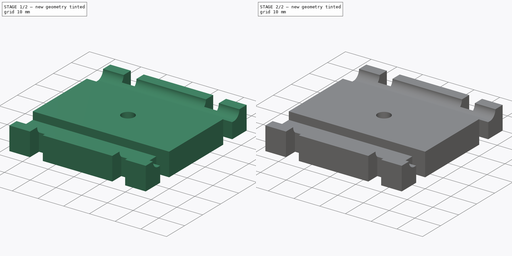
[diagram: build sequence overview — one tinted view per stage of 2, left to right]
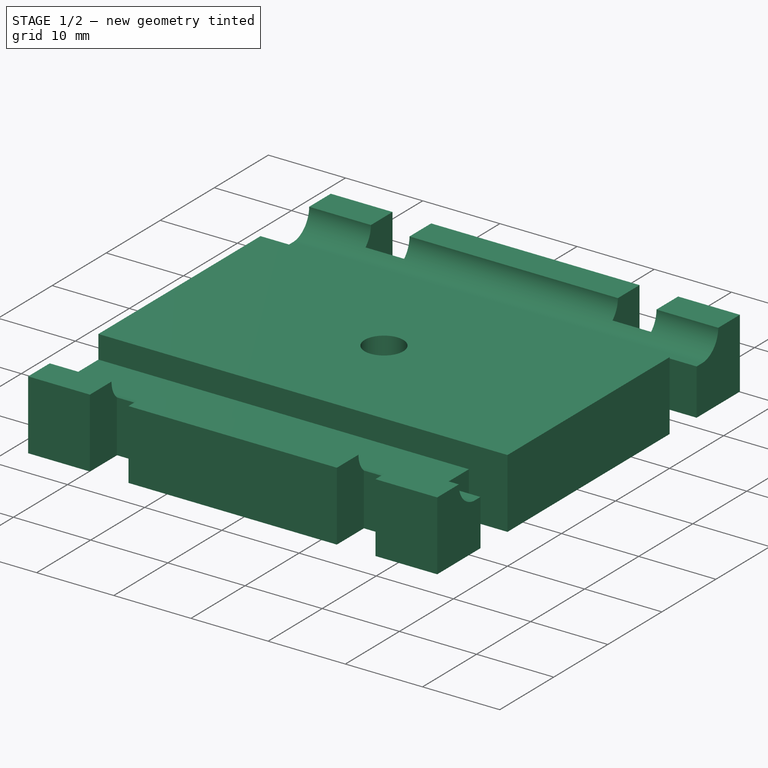
[diagram: stage 1 of 2 — iso view after this stage's code; geometry added in this stage tinted green]
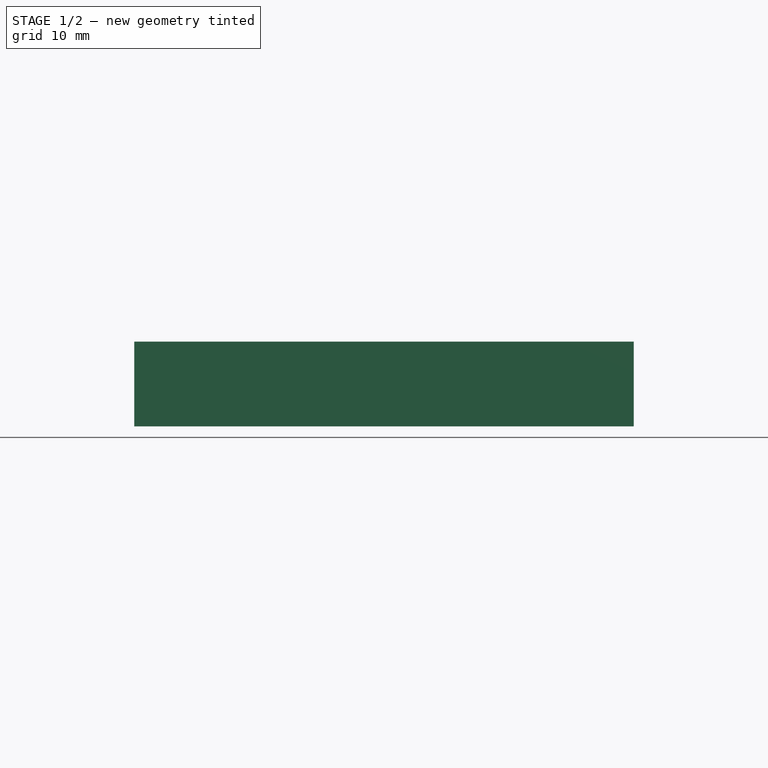
[diagram: stage 1 of 2 — front view after this stage's code; geometry added in this stage tinted green]
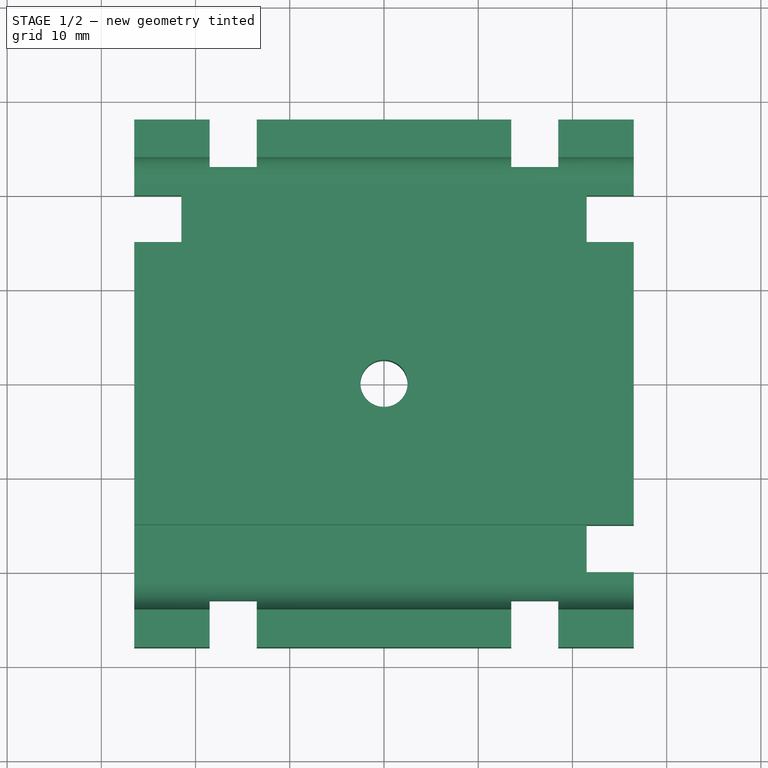
[diagram: stage 1 of 2 — top view after this stage's code; geometry added in this stage tinted green]
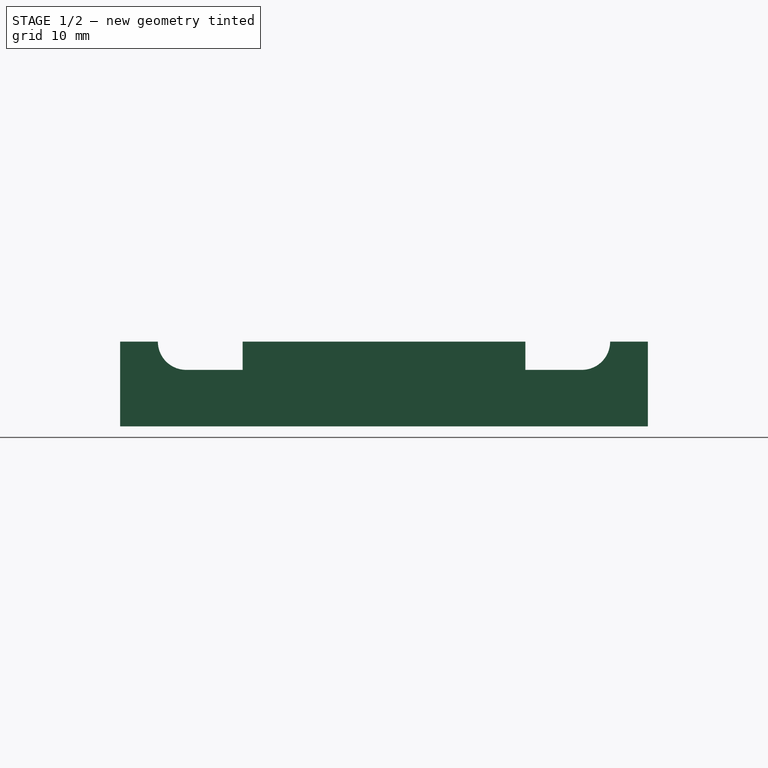
[diagram: stage 1 of 2 — right view after this stage's code; geometry added in this stage tinted green]
FCSTD DOCUMENT  (FreeCAD 0.20R29177 (Git))
Label: ClosetMaid
License: All rights reserved
LicenseURL: http://en.wikipedia.org/wiki/All_rights_reserved
objects: Sketcher::SketchObject×3, PartDesign::Pocket×2, Spreadsheet::Sheet×1, PartDesign::Pad×1, PartDesign::Body×1
note: 10 computed .brp shape members not serialized (recipe doc carries the construction recipe); baked Part::Feature solids carry a one-line shape summary decoded from their .brp

FEATURE [Sketcher::SketchObject] Sketch
  FullyConstrained = true
  MapMode = 5
  Support = -> [XY_Plane]
  expr: Constraints[10] = Spreadsheet.width / 2
  expr: Constraints[11] = Spreadsheet.height / 2
  expr: Constraints[13] = Spreadsheet.centerHoleR
  expr: Constraints[19] = Spreadsheet.holderToSideW
  expr: Constraints[23] = Spreadsheet.sideHolderW
  expr: Constraints[24] = Spreadsheet.sideHoleDepth
  expr: Constraints[31] = Spreadsheet.holderToSideW
  expr: Constraints[34] = Spreadsheet.sideHolderW
  expr: Constraints[35] = Spreadsheet.sideHoleDepth
  expr: Constraints[77] = Spreadsheet.width / 2
  expr: Constraints[8] = Spreadsheet.width
  expr: Constraints[9] = Spreadsheet.height
  sketch-geometry (33):
    g0: LineSegment StartX=-26.5 StartY=28 StartZ=0 EndX=-18.5 EndY=28 EndZ=0
    g1: LineSegment StartX=26.5 StartY=28 StartZ=0 EndX=26.5 EndY=20 EndZ=0
    g2: LineSegment StartX=26.5 StartY=-28 StartZ=0 EndX=18.5 EndY=-28 EndZ=0
    g3: LineSegment StartX=-26.5 StartY=-28 StartZ=0 EndX=-26.5 EndY=15 EndZ=0
    g4: Circle CenterX=0 CenterY=0 CenterZ=0 NormalX=0 NormalY=0 NormalZ=1 AngleXU=0 Radius=2.5
    g5: LineSegment StartX=13.5 StartY=28 StartZ=0 EndX=13.5 EndY=23 EndZ=0
    g6: LineSegment StartX=13.5 StartY=23 StartZ=0 EndX=18.5 EndY=23 EndZ=0
    g7: LineSegment StartX=18.5 StartY=23 StartZ=0 EndX=18.5 EndY=28 EndZ=0
    g8: LineSegment StartX=18.5 StartY=28 StartZ=0 EndX=26.5 EndY=28 EndZ=0
    g9: LineSegment StartX=-18.5 StartY=28 StartZ=0 EndX=-18.5 EndY=23 EndZ=0
    g10: LineSegment StartX=-18.5 StartY=23 StartZ=0 EndX=-13.5 EndY=23 EndZ=0
    g11: LineSegment StartX=-13.5 StartY=23 StartZ=0 EndX=-13.5 EndY=28 EndZ=0
    g12: LineSegment StartX=-13.5 StartY=28 StartZ=0 EndX=13.5 EndY=28 EndZ=0
    g13: LineSegment StartX=-18.5 StartY=-28 StartZ=0 EndX=-18.5 EndY=-23 EndZ=0
    g14: LineSegment StartX=-18.5 StartY=-23 StartZ=0 EndX=-13.5 EndY=-23 EndZ=0
    g15: LineSegment StartX=-13.5 StartY=-23 StartZ=0 EndX=-13.5 EndY=-28 EndZ=0
    g16: LineSegment StartX=-18.5 StartY=-28 StartZ=0 EndX=-26.5 EndY=-28 EndZ=0
    g17: LineSegment StartX=13.5 StartY=-28 StartZ=0 EndX=13.5 EndY=-23 EndZ=0
    g18: LineSegment StartX=13.5 StartY=-23 StartZ=0 EndX=18.5 EndY=-23 EndZ=0
    g19: LineSegment StartX=18.5 StartY=-23 StartZ=0 EndX=18.5 EndY=-28 EndZ=0
    g20: LineSegment StartX=13.5 StartY=-28 StartZ=0 EndX=-13.5 EndY=-28 EndZ=0
    g21: LineSegment StartX=26.5 StartY=20 StartZ=0 EndX=21.5 EndY=20 EndZ=0
    g22: LineSegment StartX=21.5 StartY=20 StartZ=0 EndX=21.5 EndY=15 EndZ=0
    g23: LineSegment StartX=21.5 StartY=15 StartZ=0 EndX=26.5 EndY=15 EndZ=0
    g24: LineSegment StartX=26.5 StartY=15 StartZ=0 EndX=26.5 EndY=-15 EndZ=0
    g25: LineSegment StartX=-26.5 StartY=20 StartZ=0 EndX=-21.5 EndY=20 EndZ=0
    g26: LineSegment StartX=-21.5 StartY=20 StartZ=0 EndX=-21.5 EndY=15 EndZ=0
    g27: LineSegment StartX=-21.5 StartY=15 StartZ=0 EndX=-26.5 EndY=15 EndZ=0
    g28: LineSegment StartX=-26.5 StartY=20 StartZ=0 EndX=-26.5 EndY=28 EndZ=0
    g29: LineSegment StartX=26.5 StartY=-15 StartZ=0 EndX=21.5 EndY=-15 EndZ=0
    g30: LineSegment StartX=21.5 StartY=-15 StartZ=0 EndX=21.5 EndY=-20 EndZ=0
    g31: LineSegment StartX=21.5 StartY=-20 StartZ=0 EndX=26.5 EndY=-20 EndZ=0
    g32: LineSegment StartX=26.5 StartY=-20 StartZ=0 EndX=26.5 EndY=-28 EndZ=0
  constraints (98):
    c: Coincident(g8,g1)
    c: Coincident(g32,g2)
    c: Coincident(g16,g3)
    c: Coincident(g28,g0)
    c: Horizontal(g0)
    c: Horizontal(g2)
    c: Vertical(g1)
    c: Vertical(g3)
    c: DistanceX(g0,g8) = 53
    c: DistanceY(g32,g1) = 56
    c: DistanceX(g-1,g8) = 26.5
    c: DistanceY(g-1,g8) = 28
    c: Coincident(g4,g-1)
    c: Radius(g4) = 2.5
    c: Coincident(g5,g6)
    c: Coincident(g6,g7)
    c: Horizontal(g6)
    c: Vertical(g5)
    c: Vertical(g7)
    c: DistanceX(g8,g8) = 8
    c: Parallel(g8,g-1)
    c: Coincident(g7,g8)
    c: Coincident(g5,g12)
    c: DistanceX(g6,g6) = 5
    c: DistanceY(g7,g7) = 5
    c: Vertical(g9)
    c: Coincident(g10,g9)
    c: Horizontal(g10)
    c: Vertical(g11)
    c: Coincident(g0,g9)
    c: Coincident(g12,g11)
    c: DistanceX(g0,g0) = 8
    c: Parallel(g12,g-1)
    c: Coincident(g11,g10)
    c: DistanceX(g10,g10) = 5
    c: DistanceY(g11,g11) = 5
    c: Vertical(g13)
    c: Coincident(g14,g13)
    c: Horizontal(g14)
    c: Coincident(g15,g14)
    c: Vertical(g15)
    c: Coincident(g20,g15)
    c: Coincident(g16,g13)
    c: Equal(g0,g16)
    c: Equal(g14,g10)
    c: Equal(g11,g15)
    c: Vertical(g17)
    c: Coincident(g18,g17)
    c: Horizontal(g18)
    c: Coincident(g19,g18)
    c: Vertical(g19)
    c: Coincident(g2,g19)
    c: Coincident(g20,g17)
    c: Equal(g2,g8)
    c: Equal(g7,g19)
    c: Equal(g18,g6)
    c: Horizontal(g21)
    c: Coincident(g22,g21)
    c: Vertical(g22)
    c: Coincident(g23,g22)
    c: Horizontal(g23)
    c: Coincident(g1,g21)
    c: Coincident(g24,g23)
    c: Equal(g8,g1)
    c: Equal(g7,g21)
    c: Equal(g6,g22)
    c: Horizontal(g25)
    c: Coincident(g26,g25)
    c: Vertical(g26)
    c: Coincident(g27,g26)
    c: Horizontal(g27)
    c: Coincident(g3,g27)
    c: Coincident(g28,g25)
    c: Parallel(g16,g-1)
    c: Equal(g15,g13)
    c: Parallel(g20,g-1)
    c: Equal(g17,g19)
    c: DistanceX(g3,g4) = 26.5
    c: Equal(g22,g26)
    c: Equal(g1,g28)
    c: Equal(g25,g21)
    c: Parallel(g28,g-2)
    c: Horizontal(g29)
    c: Vertical(g30)
    c: Coincident(g31,g30)
    c: Horizontal(g31)
    c: Coincident(g29,g24)
    c: Coincident(g31,g32)
    c: Equal(g1,g32)
    c: Parallel(g32,g-2)
    c: Coincident(g29,g30)
    c: Parallel(g24,g-2)
    c: Equal(g30,g22)
    c: Equal(g29,g23)
    c: DistanceX(g31,g24) = 0
    c: Equal(g21,g23)
    c: Equal(g7,g9)
    c: Equal(g7,g5)
FEATURE [Spreadsheet::Sheet] Spreadsheet
  cells = A2=width; B2(width)=53; D2=centerX; E2(centerX)==B2 / 2; A3=height; B3(height)=56; D3=centerY; E3(centerY)==B3 / 2; A4=holderToSideW; B4(holderToSideW)=8; A5=holderToTopH; B5(holderToTopH)=12; A6=hexNutR; B6(hexNutR)=5.5; A7=sideHolderW; B7(sideHolderW)=5; A8=thickness; B8(thickness)=9; A9=centerHoleR; B9(centerHoleR)==5 / 2; A10=sidePassR; B10(sidePassR)=3; A11=sidePassHoleToDist; B11(sidePassHoleToDist)=7; A12=sideHoleDepth; B12(sideHoleDepth)=5
FEATURE [PartDesign::Pad] Pad
  Direction = (0,0,1)
  Length = 9
  Length2 = 10
  Profile = -> Sketch
  ReferenceAxis = -> Sketch [N_Axis]
  Type = 0
  expr: Length = Spreadsheet.thickness
FEATURE [Sketcher::SketchObject] Sketch001
  ExternalGeometry = -> [Pad]
  FullyConstrained = true
  MapMode = 5
  Placement = pos=(26.5,0,0) rot=(0.57735,0.57735,0.57735;2.0944rad)
  Support = -> [Pad]
  expr: Constraints[14] = Spreadsheet.sidePassHoleToDist
  expr: Constraints[15] = Spreadsheet.sidePassHoleToDist
  expr: Constraints[3] = Spreadsheet.sidePassR
  sketch-geometry (8):
    g0: ArcOfCircle CenterX=-21 CenterY=9 CenterZ=0 NormalX=0 NormalY=0 NormalZ=1 AngleXU=0 Radius=3 StartAngle=3.14159 EndAngle=4.71239
    g1: ArcOfCircle CenterX=21 CenterY=9 CenterZ=0 NormalX=0 NormalY=0 NormalZ=1 AngleXU=0 Radius=3 StartAngle=4.71239 EndAngle=6.28319
    g2: LineSegment StartX=-21 StartY=6 StartZ=0 EndX=-15 EndY=6 EndZ=0
    g3: LineSegment StartX=21 StartY=6 StartZ=0 EndX=15 EndY=6 EndZ=0
    g4: LineSegment StartX=-15 StartY=6 StartZ=0 EndX=-15 EndY=9 EndZ=0
    g5: LineSegment StartX=-15 StartY=9 StartZ=0 EndX=-24 EndY=9 EndZ=0
    g6: LineSegment StartX=15 StartY=6 StartZ=0 EndX=15 EndY=9 EndZ=0
    g7: LineSegment StartX=15 StartY=9 StartZ=0 EndX=24 EndY=9 EndZ=0
  constraints (23):
    c: PointOnObject(g0,g-9)
    c: PointOnObject(g1,g-10)
    c: Equal(g0,g1)
    c: Radius(g0) = 3
    c: PointOnObject(g2,g-4)
    c: Horizontal(g2)
    c: PointOnObject(g3,g-5)
    c: Horizontal(g3)
    c: Coincident(g4,g2)
    c: Coincident(g5,g4)
    c: Coincident(g6,g3)
    c: Coincident(g7,g6)
    c: Coincident(g4,g-4)
    c: Coincident(g6,g-5)
    c: DistanceX(g-9,g0) = 7
    c: DistanceX(g1,g-10) = 7
    c: Parallel(g7,g3)
    c: Coincident(g1,g7)
    c: PointOnObject(g0,g-9)
    c: Coincident(g0,g5)
    c: Tangent(g0,g2) = -1.5708
    c: Coincident(g1,g3)
    c: DistanceX(g1,g1) = 0
FEATURE [PartDesign::Pocket] Pocket
  BaseFeature = -> Pad
  Direction = (-1,0,0)
  Length = 5
  Length2 = 5
  Profile = -> Sketch001
  ReferenceAxis = -> Sketch001 [N_Axis]
  Type = 1
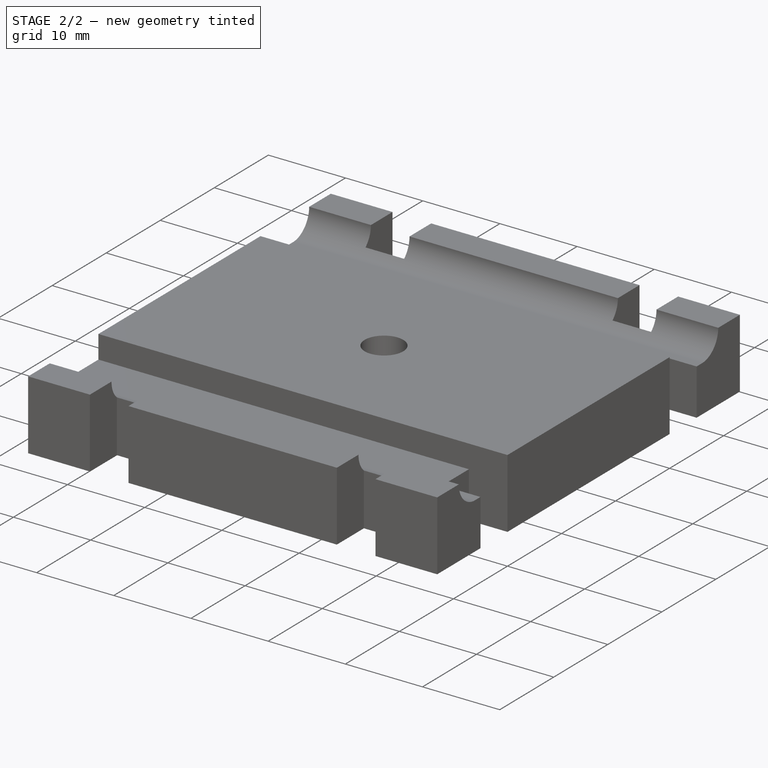
[diagram: stage 2 of 2 — iso view after this stage's code; geometry added in this stage tinted green]
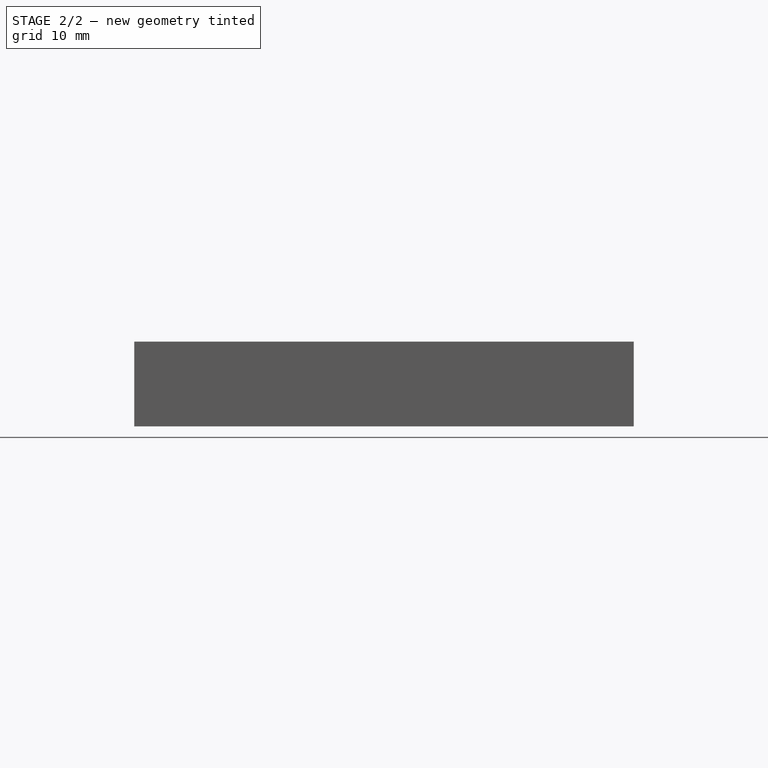
[diagram: stage 2 of 2 — front view after this stage's code; geometry added in this stage tinted green]
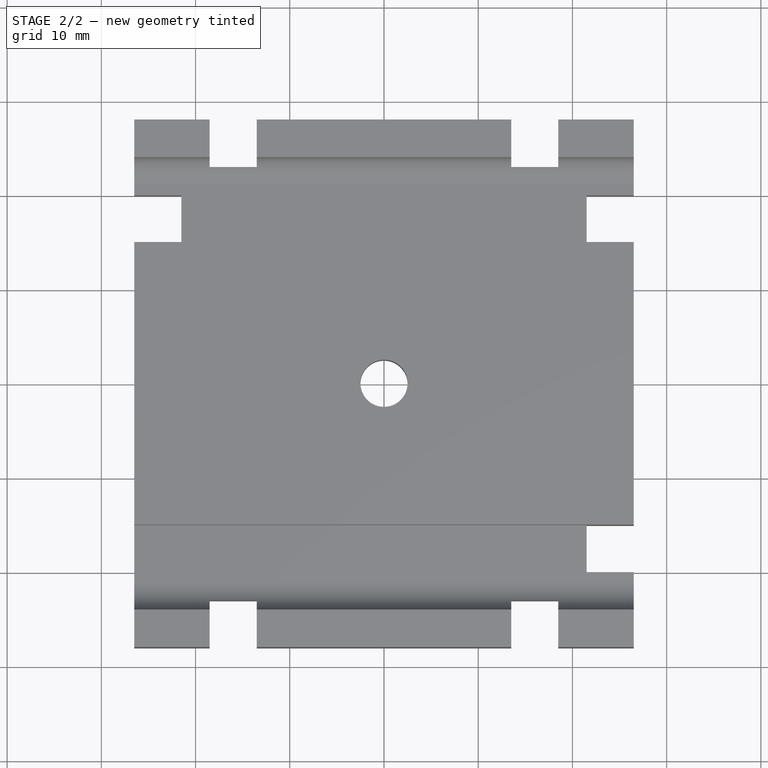
[diagram: stage 2 of 2 — top view after this stage's code; geometry added in this stage tinted green]
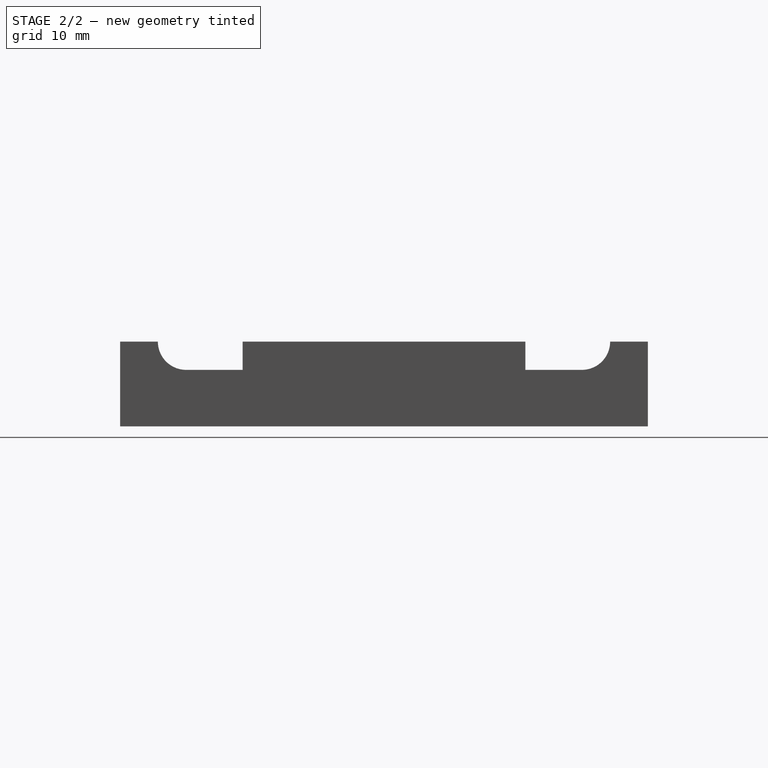
[diagram: stage 2 of 2 — right view after this stage's code; geometry added in this stage tinted green]
FEATURE [Sketcher::SketchObject] Sketch002
  FullyConstrained = true
  MapMode = 5
  Placement = pos=(0,0,0) rot=(1,0,0;3.14159rad)
  Support = -> [Pocket]
  expr: Constraints[18] = Spreadsheet.hexNutR
  sketch-geometry (7):
    g0: LineSegment StartX=2.75 StartY=-4.76314 StartZ=0 EndX=5.5 EndY=0 EndZ=0
    g1: LineSegment StartX=5.5 StartY=0 StartZ=0 EndX=2.75 EndY=4.76314 EndZ=0
    g2: LineSegment StartX=2.75 StartY=4.76314 StartZ=0 EndX=-2.75 EndY=4.76314 EndZ=0
    g3: LineSegment StartX=-2.75 StartY=4.76314 StartZ=0 EndX=-5.5 EndY=1.62697e-11 EndZ=0
    g4: LineSegment StartX=-5.5 StartY=1.62694e-11 StartZ=0 EndX=-2.75 EndY=-4.76314 EndZ=0
    g5: LineSegment StartX=-2.75 StartY=-4.76314 StartZ=0 EndX=2.75 EndY=-4.76314 EndZ=0
    g6: Circle CenterX=0 CenterY=1e-16 CenterZ=0 NormalX=0 NormalY=0 NormalZ=1 AngleXU=0 Radius=5.5
  constraints (16):
    c: Coincident(g0,g1)
    c: Coincident(g1,g2)
    c: Coincident(g2,g3)
    c: Coincident(g3,g4)
    c: Coincident(g4,g5)
    c: Coincident(g5,g0)
    c: Equal(g0, g1-g5) x5
    c: PointOnObject(g0,g6)
    c: PointOnObject(g1,g6)
    c: PointOnObject(g2,g6)
    c: PointOnObject(g3,g6)
    c: PointOnObject(g4,g6)
    c: PointOnObject(g5,g6)
    c: Coincident(g6,g-1)
    c: Radius(g6) = 5.5
    c: PointOnObject(g0,g-1)
FEATURE [PartDesign::Pocket] Pocket001
  BaseFeature = -> Pocket
  Direction = (0,0,1)
  Length = 2
  Length2 = 5
  Profile = -> Sketch002
  ReferenceAxis = -> Sketch002 [N_Axis]
  Type = 0
FEATURE [PartDesign::Body] Body
  Group = -> [Sketch,Pad,Sketch001,Pocket,Sketch002,Pocket001]
  Origin = -> Origin
  Tip = -> Pocket001
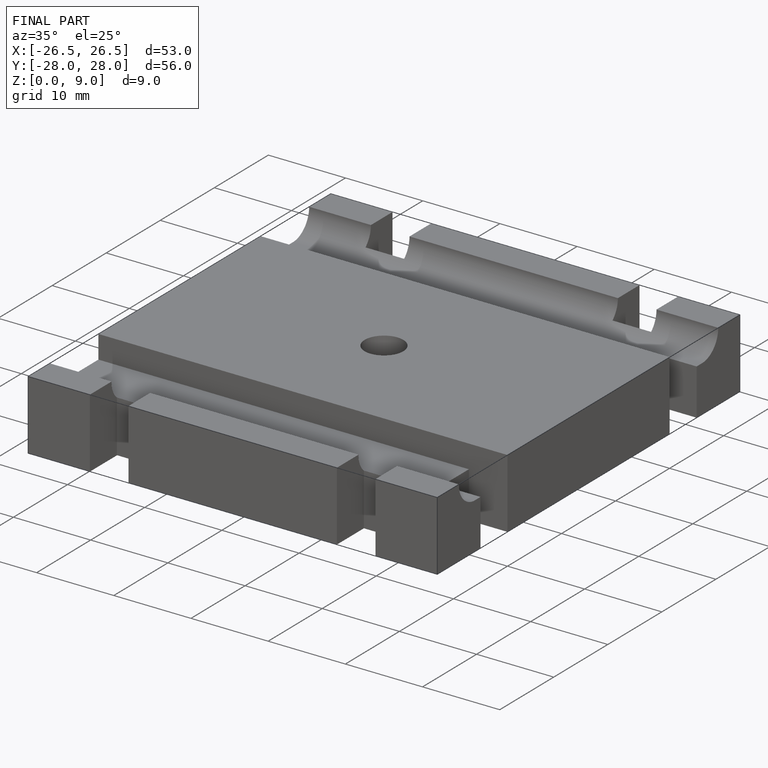
[diagram: finished part — iso view with bounding-box wireframe]
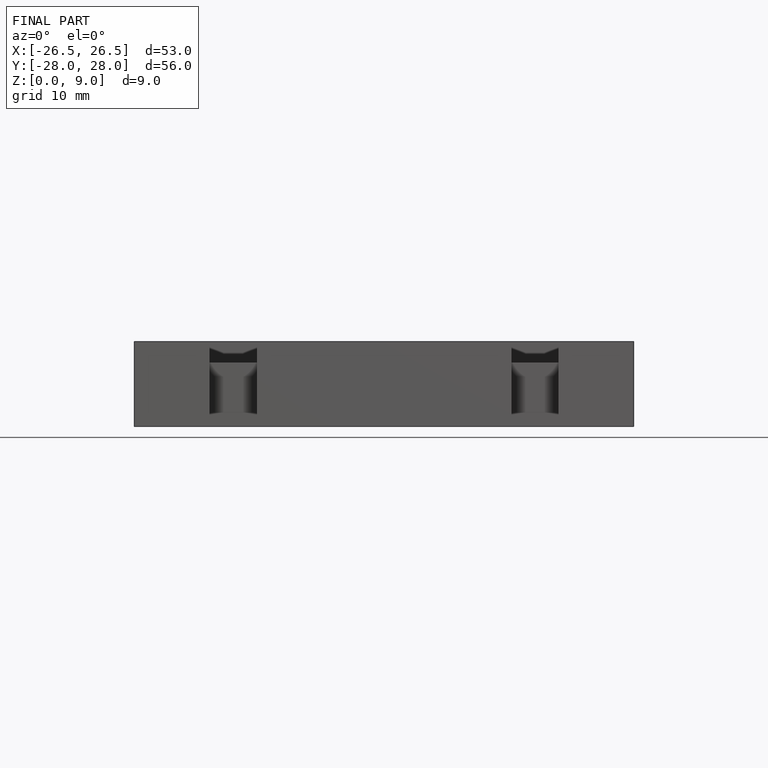
[diagram: finished part — front view with bounding-box wireframe]
